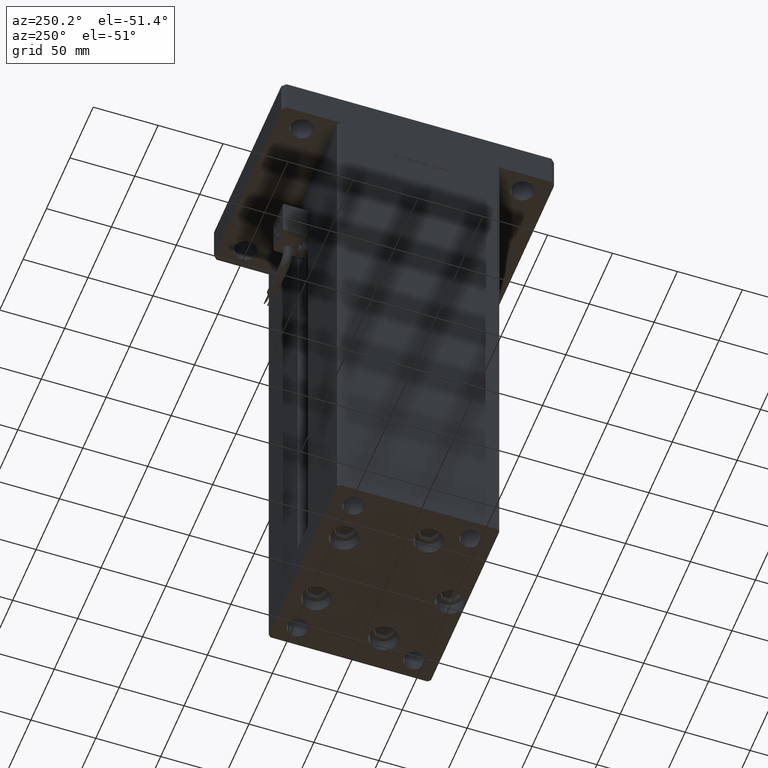
[diagram: clean part render]
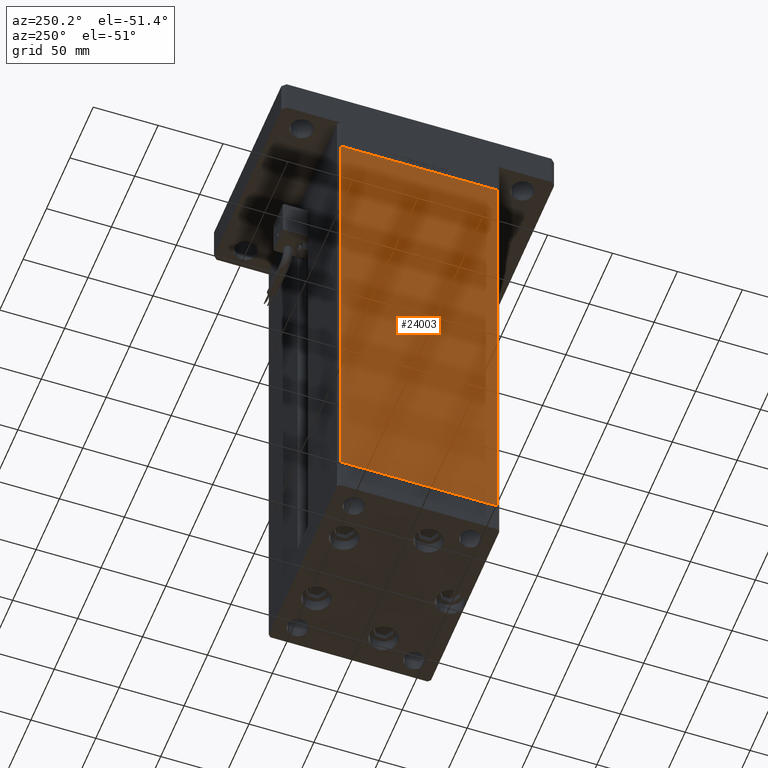
[diagram: same view with one face highlighted and labeled with its STEP entity id]
A machine part, auxiliary view. The second image highlights one B-rep face of the part: STEP entity #24003.
In plain terms, the highlighted planar face has unit normal (1, 0, 0).
Its self-contained STEP definition (entity closure, byte-faithful):
#5889 = EDGE_CURVE ( 'NONE', #37683, #21154, #37499, .T. ) ;
#6464 = LINE ( 'NONE', #15000, #13014 ) ;
#7169 = CARTESIAN_POINT ( 'NONE',  ( -75.00000000000001421, 60.50000000000000000, 367.0000000000000000 ) ) ;
#10348 = DIRECTION ( 'NONE',  ( 1.000000000000000000, 2.293849224432141861E-16, -0.000000000000000000 ) ) ;
#11641 = DIRECTION ( 'NONE',  ( 2.293849224432141861E-16, -1.000000000000000000, 0.000000000000000000 ) ) ;
#11763 = VECTOR ( 'NONE', #21027, 1000.000000000000000 ) ;
#12241 = CARTESIAN_POINT ( 'NONE',  ( -75.00000000000001421, 60.50000000000000000, 367.0000000000000000 ) ) ;
#13014 = VECTOR ( 'NONE', #32330, 1000.000000000000000 ) ;
#15000 = CARTESIAN_POINT ( 'NONE',  ( -74.99999999999998579, -60.50000000000000000, 367.0000000000000000 ) ) ;
#15828 = LINE ( 'NONE', #50515, #46605 ) ;
#21027 = DIRECTION ( 'NONE',  ( 2.293849224432141861E-16, -1.000000000000000000, 0.000000000000000000 ) ) ;
#21154 = VERTEX_POINT ( 'NONE', #32612 ) ;
#24003 = ADVANCED_FACE ( 'NONE', ( #37306 ), #33037, .F. ) ;
#24068 = CARTESIAN_POINT ( 'NONE',  ( -74.99999999999998579, -60.50000000000000000, 367.0000000000000000 ) ) ;
#24499 = DIRECTION ( 'NONE',  ( -2.293849224432141861E-16, 1.000000000000000000, 0.000000000000000000 ) ) ;
#24975 = CARTESIAN_POINT ( 'NONE',  ( -75.00000000000001421, 60.50000000000000000, 0.000000000000000000 ) ) ;
#25763 = CARTESIAN_POINT ( 'NONE',  ( -75.00000000000001421, 60.50000000000000000, 367.0000000000000000 ) ) ;
#26336 = VERTEX_POINT ( 'NONE', #24068 ) ;
#29203 = AXIS2_PLACEMENT_3D ( 'NONE', #7169, #10348, #24499 ) ;
#32330 = DIRECTION ( 'NONE',  ( -0.000000000000000000, -0.000000000000000000, -1.000000000000000000 ) ) ;
#32469 = ORIENTED_EDGE ( 'NONE', *, *, #41452, .F. ) ;
#32612 = CARTESIAN_POINT ( 'NONE',  ( -74.99999999999998579, -60.50000000000000000, 0.000000000000000000 ) ) ;
#33037 = PLANE ( 'NONE',  #29203 ) ;
#33138 = VERTEX_POINT ( 'NONE', #25763 ) ;
#34734 = ORIENTED_EDGE ( 'NONE', *, *, #53839, .F. ) ;
#36918 = VECTOR ( 'NONE', #11641, 1000.000000000000000 ) ;
#37306 = FACE_OUTER_BOUND ( 'NONE', #44772, .T. ) ;
#37499 = LINE ( 'NONE', #24975, #36918 ) ;
#37683 = VERTEX_POINT ( 'NONE', #50039 ) ;
#38090 = LINE ( 'NONE', #12241, #11763 ) ;
#39489 = ORIENTED_EDGE ( 'NONE', *, *, #54651, .T. ) ;
#41452 = EDGE_CURVE ( 'NONE', #33138, #26336, #38090, .T. ) ;
#44772 = EDGE_LOOP ( 'NONE', ( #48666, #34734, #32469, #39489 ) ) ;
#46605 = VECTOR ( 'NONE', #49961, 1000.000000000000000 ) ;
#48666 = ORIENTED_EDGE ( 'NONE', *, *, #5889, .T. ) ;
#49961 = DIRECTION ( 'NONE',  ( -0.000000000000000000, -0.000000000000000000, -1.000000000000000000 ) ) ;
#50039 = CARTESIAN_POINT ( 'NONE',  ( -75.00000000000001421, 60.50000000000000000, 0.000000000000000000 ) ) ;
#50515 = CARTESIAN_POINT ( 'NONE',  ( -75.00000000000001421, 60.50000000000000000, 367.0000000000000000 ) ) ;
#53839 = EDGE_CURVE ( 'NONE', #26336, #21154, #6464, .T. ) ;
#54651 = EDGE_CURVE ( 'NONE', #33138, #37683, #15828, .T. ) ;